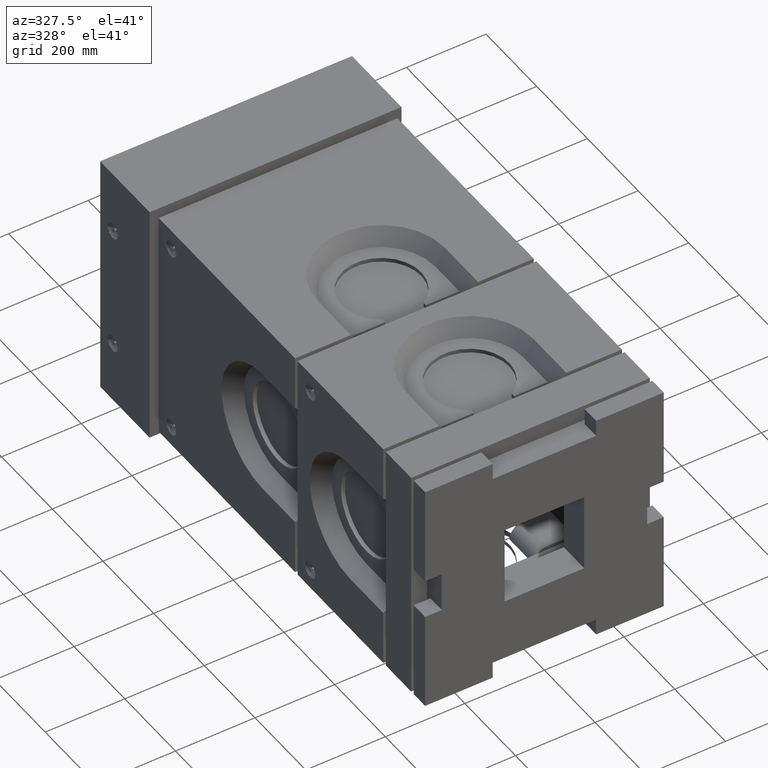
[diagram: clean part render]
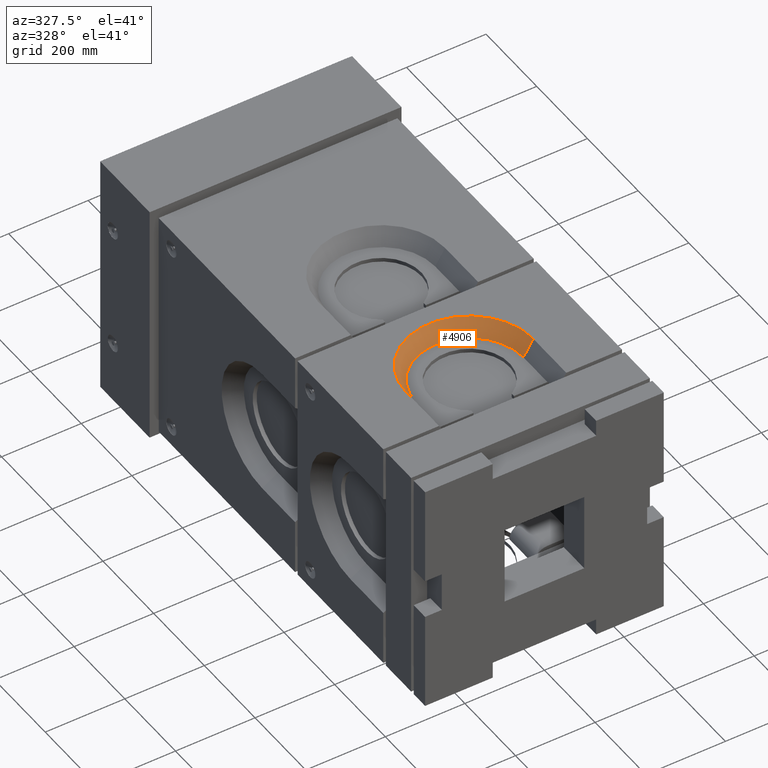
[diagram: same view with one face highlighted and labeled with its STEP entity id]
A machine part, auxiliary view. The second image highlights one B-rep face of the part: STEP entity #4906.
In plain terms, the highlighted conical surface has half-angle 32 deg.
Its self-contained STEP definition (entity closure, byte-faithful):
#928 = ORIENTED_EDGE ( 'NONE', *, *, #33173, .F. ) ;
#1320 = DIRECTION ( 'NONE',  ( 0.5299192642332060110, 5.883285683441275127E-17, 0.8480480961564252906 ) ) ;
#1351 = VECTOR ( 'NONE', #1320, 1000.000000000000114 ) ;
#2190 = LINE ( 'NONE', #19753, #1351 ) ;
#3258 = EDGE_CURVE ( 'NONE', #10917, #4967, #31234, .T. ) ;
#3807 = LINE ( 'NONE', #19274, #30823 ) ;
#4829 = DIRECTION ( 'NONE',  ( 1.000000000000000000, 0.0000000000000000000, 0.0000000000000000000 ) ) ;
#4906 = ADVANCED_FACE ( 'NONE', ( #33639 ), #30311, .F. ) ;
#4967 = VERTEX_POINT ( 'NONE', #25540 ) ;
#4980 = VERTEX_POINT ( 'NONE', #28156 ) ;
#5678 = DIRECTION ( 'NONE',  ( 0.0000000000000000000, 0.0000000000000000000, 1.000000000000000000 ) ) ;
#8774 = DIRECTION ( 'NONE',  ( -0.5299192642332060110, 9.192633880376992078E-17, 0.8480480961564252906 ) ) ;
#9524 = CARTESIAN_POINT ( 'NONE',  ( 0.0000000000000000000, 294.9999999999996021, 300.0000000000000000 ) ) ;
#10917 = VERTEX_POINT ( 'NONE', #12115 ) ;
#11278 = DIRECTION ( 'NONE',  ( 0.0000000000000000000, 0.0000000000000000000, 1.000000000000000000 ) ) ;
#11323 = AXIS2_PLACEMENT_3D ( 'NONE', #24318, #11278, #32142 ) ;
#11961 = EDGE_CURVE ( 'NONE', #4980, #4967, #3807, .T. ) ;
#12115 = CARTESIAN_POINT ( 'NONE',  ( 160.0000000000000000, 294.9999999999996021, 300.0000000000000000 ) ) ;
#12306 = EDGE_LOOP ( 'NONE', ( #13085, #33812, #928, #28654 ) ) ;
#13085 = ORIENTED_EDGE ( 'NONE', *, *, #3258, .T. ) ;
#13329 = CARTESIAN_POINT ( 'NONE',  ( 0.0000000000000000000, 294.9999999999996021, 300.0000000000000000 ) ) ;
#17209 = AXIS2_PLACEMENT_3D ( 'NONE', #9524, #32907, #4829 ) ;
#19274 = CARTESIAN_POINT ( 'NONE',  ( -159.9999999999999716, 294.9999999999996021, 300.0000000000000000 ) ) ;
#19753 = CARTESIAN_POINT ( 'NONE',  ( 160.0000000000000000, 294.9999999999996021, 300.0000000000000000 ) ) ;
#24318 = CARTESIAN_POINT ( 'NONE',  ( 0.0000000000000000000, 294.9999999999996021, 260.0000000000000000 ) ) ;
#25540 = CARTESIAN_POINT ( 'NONE',  ( -159.9999999999999716, 294.9999999999996021, 300.0000000000000000 ) ) ;
#25784 = AXIS2_PLACEMENT_3D ( 'NONE', #13329, #5678, #26601 ) ;
#26601 = DIRECTION ( 'NONE',  ( 1.000000000000000000, 0.0000000000000000000, 0.0000000000000000000 ) ) ;
#26901 = CARTESIAN_POINT ( 'NONE',  ( 135.0052259236268526, 294.9999999999996021, 260.0000000000000000 ) ) ;
#28156 = CARTESIAN_POINT ( 'NONE',  ( -135.0052259236267957, 294.9999999999996021, 260.0000000000000000 ) ) ;
#28470 = EDGE_CURVE ( 'NONE', #30148, #10917, #2190, .T. ) ;
#28654 = ORIENTED_EDGE ( 'NONE', *, *, #28470, .T. ) ;
#28699 = CIRCLE ( 'NONE', #11323, 135.0052259236267957 ) ;
#30148 = VERTEX_POINT ( 'NONE', #26901 ) ;
#30311 = CONICAL_SURFACE ( 'NONE', #17209, 159.9999999999999716, 0.5585053606381866764 ) ;
#30823 = VECTOR ( 'NONE', #8774, 1000.000000000000114 ) ;
#31234 = CIRCLE ( 'NONE', #25784, 159.9999999999999716 ) ;
#32142 = DIRECTION ( 'NONE',  ( 1.000000000000000000, 0.0000000000000000000, 0.0000000000000000000 ) ) ;
#32907 = DIRECTION ( 'NONE',  ( -0.0000000000000000000, -0.0000000000000000000, 1.000000000000000000 ) ) ;
#33173 = EDGE_CURVE ( 'NONE', #30148, #4980, #28699, .T. ) ;
#33639 = FACE_OUTER_BOUND ( 'NONE', #12306, .T. ) ;
#33812 = ORIENTED_EDGE ( 'NONE', *, *, #11961, .F. ) ;